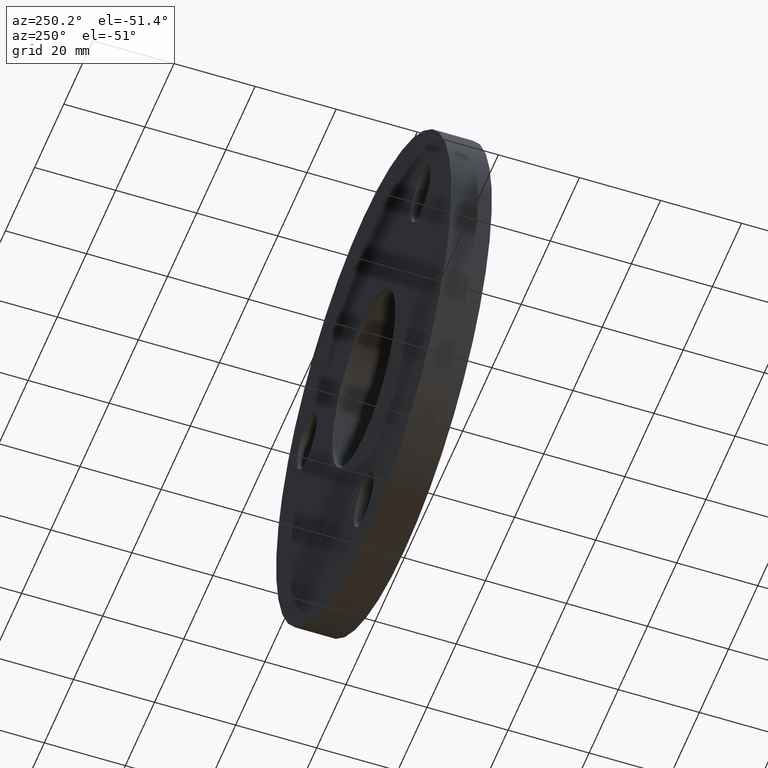
[diagram: clean part render]
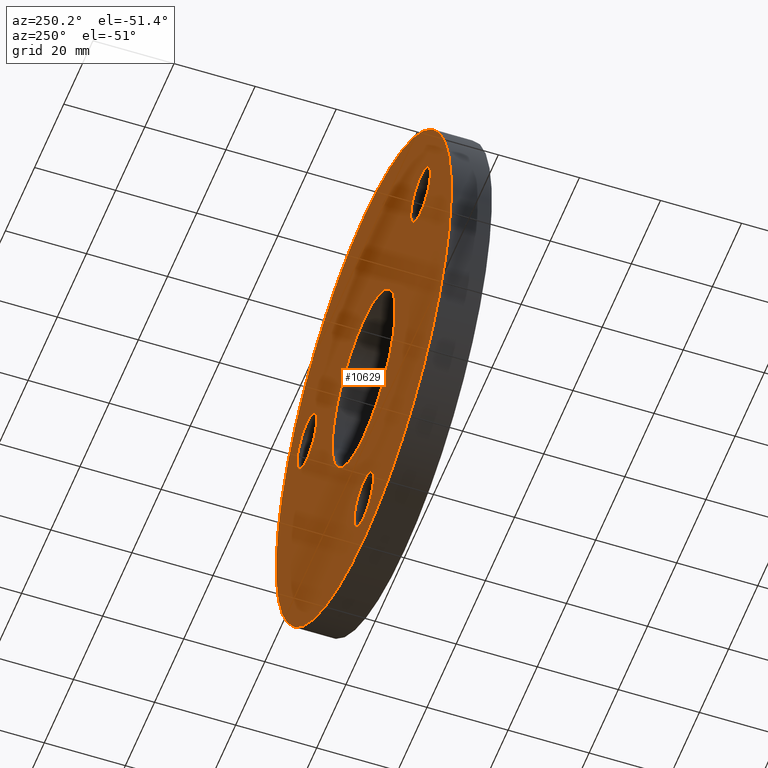
[diagram: same view with one face highlighted and labeled with its STEP entity id]
A machine part, auxiliary view. The second image highlights one B-rep face of the part: STEP entity #10629.
In plain terms, the highlighted planar face has unit normal (0, 1, 0).
Its self-contained STEP definition (entity closure, byte-faithful):
#379 = DIRECTION ( 'NONE',  ( 0.000000000000000000, -0.000000000000000000, 1.000000000000000000 ) ) ;
#497 = FACE_BOUND ( 'NONE', #1875, .T. ) ;
#538 = ORIENTED_EDGE ( 'NONE', *, *, #8090, .T. ) ;
#663 = EDGE_CURVE ( 'NONE', #5509, #7358, #4143, .T. ) ;
#711 = AXIS2_PLACEMENT_3D ( 'NONE', #11995, #4705, #15653 ) ;
#740 = EDGE_CURVE ( 'NONE', #12542, #6815, #9063, .T. ) ;
#742 = ORIENTED_EDGE ( 'NONE', *, *, #3199, .T. ) ;
#932 = AXIS2_PLACEMENT_3D ( 'NONE', #2405, #13056, #14386 ) ;
#1122 = EDGE_CURVE ( 'NONE', #2347, #3450, #4325, .T. ) ;
#1237 = AXIS2_PLACEMENT_3D ( 'NONE', #3428, #3841, #11918 ) ;
#1463 = VERTEX_POINT ( 'NONE', #4508 ) ;
#1662 = DIRECTION ( 'NONE',  ( 0.000000000000000000, 1.000000000000000000, 0.000000000000000000 ) ) ;
#1714 = CARTESIAN_POINT ( 'NONE',  ( 0.000000000000000000, 10.00000000000000000, 0.000000000000000000 ) ) ;
#1763 = EDGE_CURVE ( 'NONE', #13572, #1917, #1857, .T. ) ;
#1829 = DIRECTION ( 'NONE',  ( -0.000000000000000000, -1.000000000000000000, -0.000000000000000000 ) ) ;
#1857 = CIRCLE ( 'NONE', #13635, 21.64999999999998792 ) ;
#1875 = EDGE_LOOP ( 'NONE', ( #8212, #5242 ) ) ;
#1917 = VERTEX_POINT ( 'NONE', #11778 ) ;
#2054 = AXIS2_PLACEMENT_3D ( 'NONE', #4499, #15559, #4445 ) ;
#2156 = DIRECTION ( 'NONE',  ( 0.000000000000000000, 0.000000000000000000, 1.000000000000000000 ) ) ;
#2168 = AXIS2_PLACEMENT_3D ( 'NONE', #12621, #2809, #6456 ) ;
#2285 = CIRCLE ( 'NONE', #3297, 6.749999999999992006 ) ;
#2347 = VERTEX_POINT ( 'NONE', #10877 ) ;
#2405 = CARTESIAN_POINT ( 'NONE',  ( 38.97114317029974728, 10.00000000000000000, 22.49999999999999645 ) ) ;
#2410 = CARTESIAN_POINT ( 'NONE',  ( 0.000000000000000000, 10.00000000000000000, -38.25000000000006395 ) ) ;
#2809 = DIRECTION ( 'NONE',  ( -0.000000000000000000, -1.000000000000000000, -0.000000000000000000 ) ) ;
#3024 = DIRECTION ( 'NONE',  ( 0.000000000000000000, 0.000000000000000000, 1.000000000000000000 ) ) ;
#3199 = EDGE_CURVE ( 'NONE', #1917, #13572, #12840, .T. ) ;
#3255 = CARTESIAN_POINT ( 'NONE',  ( 0.000000000000000000, 10.00000000000000000, -45.00000000000000000 ) ) ;
#3297 = AXIS2_PLACEMENT_3D ( 'NONE', #12968, #1829, #11741 ) ;
#3428 = CARTESIAN_POINT ( 'NONE',  ( 0.000000000000000000, 10.00000000000000000, 0.000000000000000000 ) ) ;
#3450 = VERTEX_POINT ( 'NONE', #15749 ) ;
#3841 = DIRECTION ( 'NONE',  ( 0.000000000000000000, 1.000000000000000000, 0.000000000000000000 ) ) ;
#3881 = PLANE ( 'NONE',  #8120 ) ;
#4143 = CIRCLE ( 'NONE', #932, 6.749999999999995559 ) ;
#4325 = CIRCLE ( 'NONE', #1237, 60.00000000000000000 ) ;
#4408 = EDGE_CURVE ( 'NONE', #7358, #5509, #4463, .T. ) ;
#4445 = DIRECTION ( 'NONE',  ( 0.000000000000000000, 0.000000000000000000, 1.000000000000000000 ) ) ;
#4463 = CIRCLE ( 'NONE', #15471, 6.749999999999995559 ) ;
#4499 = CARTESIAN_POINT ( 'NONE',  ( -38.97114317029973307, 10.00000000000000000, 22.50000000000002132 ) ) ;
#4508 = CARTESIAN_POINT ( 'NONE',  ( -38.97114317029973307, 10.00000000000000000, 15.75000000000002842 ) ) ;
#4705 = DIRECTION ( 'NONE',  ( -0.000000000000000000, -1.000000000000000000, -0.000000000000000000 ) ) ;
#4753 = EDGE_LOOP ( 'NONE', ( #7486, #11323 ) ) ;
#4951 = CIRCLE ( 'NONE', #12631, 60.00000000000000000 ) ;
#4972 = DIRECTION ( 'NONE',  ( 0.000000000000000000, 0.000000000000000000, 1.000000000000000000 ) ) ;
#5148 = VERTEX_POINT ( 'NONE', #6896 ) ;
#5242 = ORIENTED_EDGE ( 'NONE', *, *, #11674, .T. ) ;
#5264 = FACE_BOUND ( 'NONE', #5283, .T. ) ;
#5283 = EDGE_LOOP ( 'NONE', ( #538, #12550 ) ) ;
#5509 = VERTEX_POINT ( 'NONE', #15074 ) ;
#5557 = CARTESIAN_POINT ( 'NONE',  ( 0.000000000000000000, 10.00000000000000000, 0.000000000000000000 ) ) ;
#6061 = ORIENTED_EDGE ( 'NONE', *, *, #663, .T. ) ;
#6456 = DIRECTION ( 'NONE',  ( 0.000000000000000000, 0.000000000000000000, 1.000000000000000000 ) ) ;
#6475 = CIRCLE ( 'NONE', #13549, 6.749999999999936939 ) ;
#6483 = CARTESIAN_POINT ( 'NONE',  ( 38.97114317029974728, 10.00000000000000000, 15.75000000000000000 ) ) ;
#6717 = ORIENTED_EDGE ( 'NONE', *, *, #4408, .T. ) ;
#6785 = DIRECTION ( 'NONE',  ( 0.000000000000000000, 1.000000000000000000, 0.000000000000000000 ) ) ;
#6815 = VERTEX_POINT ( 'NONE', #7034 ) ;
#6896 = CARTESIAN_POINT ( 'NONE',  ( -38.97114317029973307, 10.00000000000000000, 29.25000000000001066 ) ) ;
#7034 = CARTESIAN_POINT ( 'NONE',  ( 8.266365894244556433E-16, 10.00000000000000000, -51.74999999999993605 ) ) ;
#7358 = VERTEX_POINT ( 'NONE', #6483 ) ;
#7486 = ORIENTED_EDGE ( 'NONE', *, *, #11994, .T. ) ;
#8090 = EDGE_CURVE ( 'NONE', #5148, #1463, #12588, .T. ) ;
#8120 = AXIS2_PLACEMENT_3D ( 'NONE', #1714, #1662, #379 ) ;
#8212 = ORIENTED_EDGE ( 'NONE', *, *, #740, .T. ) ;
#8637 = FACE_OUTER_BOUND ( 'NONE', #4753, .T. ) ;
#9063 = CIRCLE ( 'NONE', #711, 6.749999999999936939 ) ;
#9221 = DIRECTION ( 'NONE',  ( 0.000000000000000000, 0.000000000000000000, 1.000000000000000000 ) ) ;
#9805 = FACE_BOUND ( 'NONE', #11481, .T. ) ;
#10425 = CARTESIAN_POINT ( 'NONE',  ( 0.000000000000000000, 10.00000000000000000, 21.64999999999998792 ) ) ;
#10629 = ADVANCED_FACE ( 'NONE', ( #11192, #9805, #5264, #497, #8637 ), #3881, .T. ) ;
#10877 = CARTESIAN_POINT ( 'NONE',  ( 7.347880794884118356E-15, 10.00000000000000000, 60.00000000000000000 ) ) ;
#11147 = DIRECTION ( 'NONE',  ( -0.000000000000000000, -1.000000000000000000, -0.000000000000000000 ) ) ;
#11192 = FACE_BOUND ( 'NONE', #12865, .T. ) ;
#11323 = ORIENTED_EDGE ( 'NONE', *, *, #1122, .T. ) ;
#11481 = EDGE_LOOP ( 'NONE', ( #6061, #6717 ) ) ;
#11674 = EDGE_CURVE ( 'NONE', #6815, #12542, #6475, .T. ) ;
#11741 = DIRECTION ( 'NONE',  ( 0.000000000000000000, 0.000000000000000000, 1.000000000000000000 ) ) ;
#11778 = CARTESIAN_POINT ( 'NONE',  ( 2.651360320154018482E-15, 10.00000000000000000, -21.64999999999998792 ) ) ;
#11879 = ORIENTED_EDGE ( 'NONE', *, *, #1763, .T. ) ;
#11918 = DIRECTION ( 'NONE',  ( 0.000000000000000000, 0.000000000000000000, 1.000000000000000000 ) ) ;
#11994 = EDGE_CURVE ( 'NONE', #3450, #2347, #4951, .T. ) ;
#11995 = CARTESIAN_POINT ( 'NONE',  ( 0.000000000000000000, 10.00000000000000000, -45.00000000000000000 ) ) ;
#12377 = CARTESIAN_POINT ( 'NONE',  ( 38.97114317029974728, 10.00000000000000000, 22.49999999999999645 ) ) ;
#12542 = VERTEX_POINT ( 'NONE', #2410 ) ;
#12550 = ORIENTED_EDGE ( 'NONE', *, *, #14108, .T. ) ;
#12588 = CIRCLE ( 'NONE', #2054, 6.749999999999992006 ) ;
#12621 = CARTESIAN_POINT ( 'NONE',  ( 0.000000000000000000, 10.00000000000000000, 0.000000000000000000 ) ) ;
#12631 = AXIS2_PLACEMENT_3D ( 'NONE', #14077, #6785, #9221 ) ;
#12840 = CIRCLE ( 'NONE', #2168, 21.64999999999998792 ) ;
#12865 = EDGE_LOOP ( 'NONE', ( #11879, #742 ) ) ;
#12968 = CARTESIAN_POINT ( 'NONE',  ( -38.97114317029973307, 10.00000000000000000, 22.50000000000002132 ) ) ;
#13056 = DIRECTION ( 'NONE',  ( -0.000000000000000000, -1.000000000000000000, -0.000000000000000000 ) ) ;
#13078 = DIRECTION ( 'NONE',  ( -0.000000000000000000, -1.000000000000000000, -0.000000000000000000 ) ) ;
#13549 = AXIS2_PLACEMENT_3D ( 'NONE', #3255, #13078, #2156 ) ;
#13572 = VERTEX_POINT ( 'NONE', #10425 ) ;
#13635 = AXIS2_PLACEMENT_3D ( 'NONE', #5557, #14063, #3024 ) ;
#14063 = DIRECTION ( 'NONE',  ( -0.000000000000000000, -1.000000000000000000, -0.000000000000000000 ) ) ;
#14077 = CARTESIAN_POINT ( 'NONE',  ( 0.000000000000000000, 10.00000000000000000, 0.000000000000000000 ) ) ;
#14108 = EDGE_CURVE ( 'NONE', #1463, #5148, #2285, .T. ) ;
#14386 = DIRECTION ( 'NONE',  ( 0.000000000000000000, 0.000000000000000000, 1.000000000000000000 ) ) ;
#15074 = CARTESIAN_POINT ( 'NONE',  ( 38.97114317029974728, 10.00000000000000000, 29.24999999999999289 ) ) ;
#15471 = AXIS2_PLACEMENT_3D ( 'NONE', #12377, #11147, #4972 ) ;
#15559 = DIRECTION ( 'NONE',  ( -0.000000000000000000, -1.000000000000000000, -0.000000000000000000 ) ) ;
#15653 = DIRECTION ( 'NONE',  ( 0.000000000000000000, 0.000000000000000000, 1.000000000000000000 ) ) ;
#15749 = CARTESIAN_POINT ( 'NONE',  ( 0.000000000000000000, 10.00000000000000000, -60.00000000000000000 ) ) ;